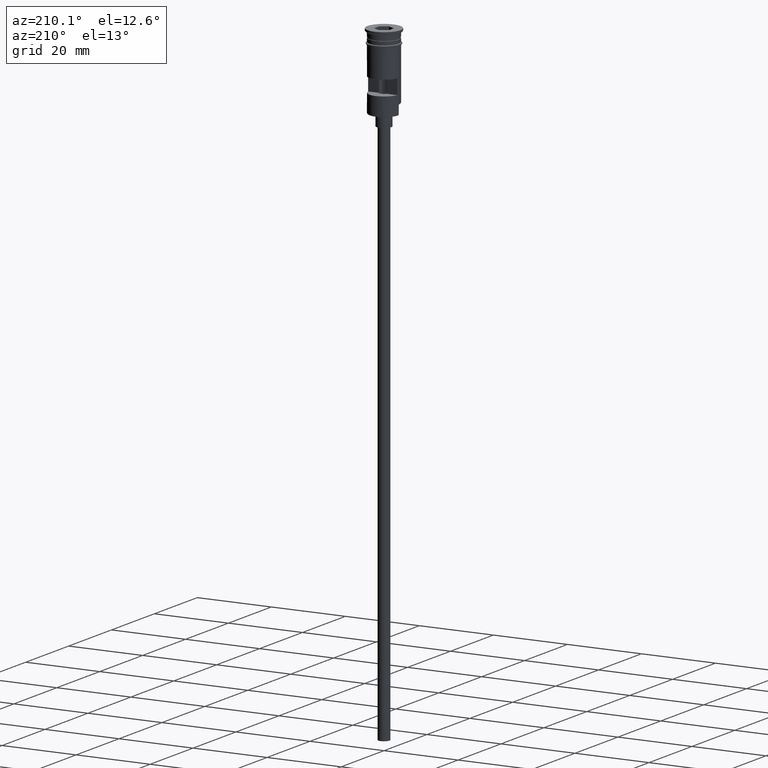
[diagram: clean part render]
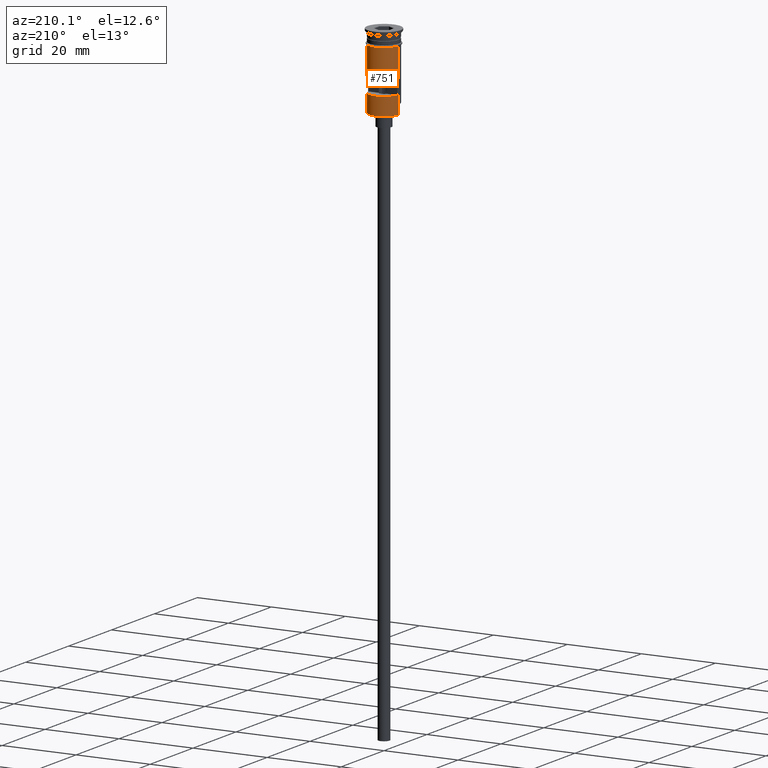
[diagram: same view with one face highlighted and labeled with its STEP entity id]
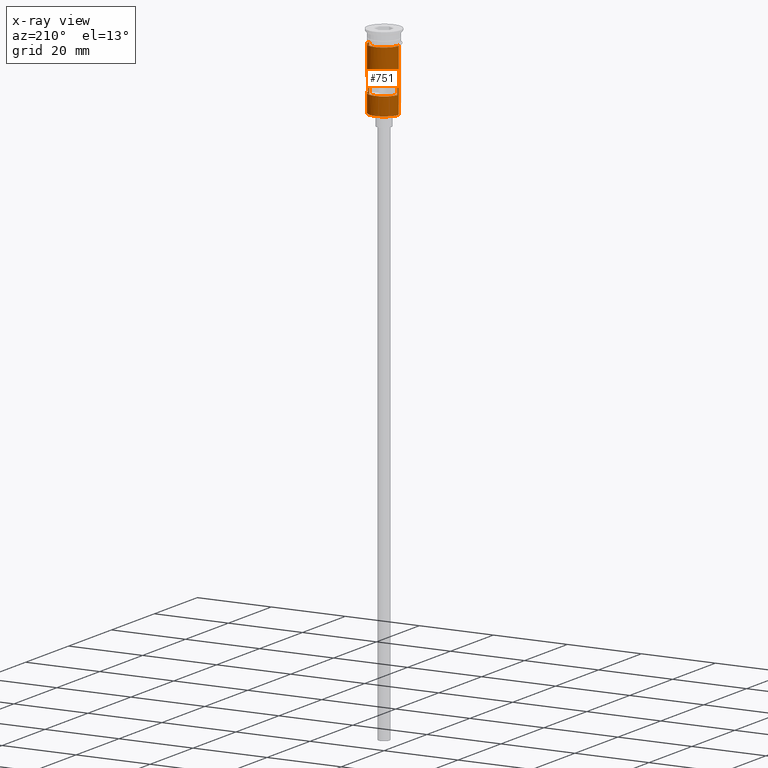
[diagram: x-ray of the same camera — body ghosted, the highlighted face saturated]
A machine part, auxiliary view. The second image highlights one B-rep face of the part: STEP entity #751.
The next image is the same camera in x-ray: the body ghosted, the highlighted face saturated — about 0% of this face is hidden behind the body in this view.
In plain terms, the highlighted cylindrical surface (edge-blend (fillet) strip) has radius 4 mm, axis along (-0, -0, 1).
Its self-contained STEP definition (entity closure, byte-faithful):
#59 = CARTESIAN_POINT ( 'NONE',  ( 3.954743986657038413, 0.5999999999999996447, -11.50000000000000000 ) ) ;
#67 = CARTESIAN_POINT ( 'NONE',  ( 4.000000000000000000, 4.898587196589412829E-16, -17.79999999999998295 ) ) ;
#69 = EDGE_CURVE ( 'NONE', #444, #1020, #927, .T. ) ;
#91 = CARTESIAN_POINT ( 'NONE',  ( -4.000000000000000000, 4.898587196589412829E-16, 0.000000000000000000 ) ) ;
#93 = CIRCLE ( 'NONE', #295, 4.000000000000000000 ) ;
#111 = VERTEX_POINT ( 'NONE', #59 ) ;
#133 = AXIS2_PLACEMENT_3D ( 'NONE', #1285, #807, #679 ) ;
#148 = EDGE_CURVE ( 'NONE', #111, #245, #899, .T. ) ;
#157 = VERTEX_POINT ( 'NONE', #1182 ) ;
#158 = CIRCLE ( 'NONE', #133, 4.000000000000000000 ) ;
#166 = EDGE_CURVE ( 'NONE', #157, #111, #158, .T. ) ;
#171 = DIRECTION ( 'NONE',  ( -1.000000000000000000, 0.000000000000000000, 0.000000000000000000 ) ) ;
#176 = CARTESIAN_POINT ( 'NONE',  ( -3.954743986657037524, 0.5999999999999996447, 0.000000000000000000 ) ) ;
#182 = LINE ( 'NONE', #670, #984 ) ;
#183 = DIRECTION ( 'NONE',  ( -0.000000000000000000, -0.000000000000000000, 1.000000000000000000 ) ) ;
#201 = EDGE_CURVE ( 'NONE', #889, #509, #1463, .T. ) ;
#245 = VERTEX_POINT ( 'NONE', #1435 ) ;
#258 = FACE_BOUND ( 'NONE', #503, .T. ) ;
#282 = DIRECTION ( 'NONE',  ( -0.000000000000000000, -0.000000000000000000, 1.000000000000000000 ) ) ;
#285 = CARTESIAN_POINT ( 'NONE',  ( 0.000000000000000000, 0.000000000000000000, -20.29999999999997584 ) ) ;
#295 = AXIS2_PLACEMENT_3D ( 'NONE', #305, #183, #1049 ) ;
#299 = AXIS2_PLACEMENT_3D ( 'NONE', #285, #1283, #171 ) ;
#305 = CARTESIAN_POINT ( 'NONE',  ( 0.000000000000000000, 0.000000000000000000, -3.799999999999998490 ) ) ;
#365 = CARTESIAN_POINT ( 'NONE',  ( 0.000000000000000000, 0.000000000000000000, -15.50000000000000000 ) ) ;
#371 = VECTOR ( 'NONE', #709, 1000.000000000000000 ) ;
#379 = CIRCLE ( 'NONE', #299, 4.000000000000000000 ) ;
#384 = EDGE_CURVE ( 'NONE', #444, #1048, #379, .T. ) ;
#388 = CARTESIAN_POINT ( 'NONE',  ( -3.999999999999997335, 0.000000000000000000, -17.79999999999998295 ) ) ;
#395 = CARTESIAN_POINT ( 'NONE',  ( 3.999999999999997335, 4.898587196589409870E-16, -20.29999999999997584 ) ) ;
#422 = VERTEX_POINT ( 'NONE', #896 ) ;
#438 = EDGE_CURVE ( 'NONE', #1020, #422, #182, .T. ) ;
#444 = VERTEX_POINT ( 'NONE', #395 ) ;
#503 = EDGE_LOOP ( 'NONE', ( #551, #1248, #915, #954 ) ) ;
#509 = VERTEX_POINT ( 'NONE', #828 ) ;
#527 = ORIENTED_EDGE ( 'NONE', *, *, #201, .T. ) ;
#528 = EDGE_CURVE ( 'NONE', #1048, #889, #1308, .T. ) ;
#532 = AXIS2_PLACEMENT_3D ( 'NONE', #1396, #282, #1149 ) ;
#543 = VECTOR ( 'NONE', #918, 1000.000000000000000 ) ;
#551 = ORIENTED_EDGE ( 'NONE', *, *, #148, .F. ) ;
#553 = CARTESIAN_POINT ( 'NONE',  ( -3.999999999999997335, 0.000000000000000000, -20.49999999999999645 ) ) ;
#617 = ORIENTED_EDGE ( 'NONE', *, *, #384, .T. ) ;
#665 = CARTESIAN_POINT ( 'NONE',  ( -3.999999999999997335, 0.000000000000000000, -20.29999999999997584 ) ) ;
#669 = ORIENTED_EDGE ( 'NONE', *, *, #69, .F. ) ;
#670 = CARTESIAN_POINT ( 'NONE',  ( 4.000000000000000000, 0.000000000000000000, 0.000000000000000000 ) ) ;
#679 = DIRECTION ( 'NONE',  ( 1.000000000000000000, 0.000000000000000000, 0.000000000000000000 ) ) ;
#709 = DIRECTION ( 'NONE',  ( -0.000000000000000000, -0.000000000000000000, 1.000000000000000000 ) ) ;
#751 = ADVANCED_FACE ( 'NONE', ( #258, #1403 ), #905, .T. ) ;
#762 = CARTESIAN_POINT ( 'NONE',  ( -3.954743986657037524, 0.5999999999999996447, -15.50000000000000000 ) ) ;
#798 = AXIS2_PLACEMENT_3D ( 'NONE', #365, #865, #1000 ) ;
#807 = DIRECTION ( 'NONE',  ( -0.000000000000000000, 0.000000000000000000, -1.000000000000000000 ) ) ;
#814 = LINE ( 'NONE', #176, #1039 ) ;
#824 = CIRCLE ( 'NONE', #798, 4.000000000000000000 ) ;
#828 = CARTESIAN_POINT ( 'NONE',  ( -4.000000000000000000, 4.898587196589412829E-16, -3.799999999999998490 ) ) ;
#843 = ORIENTED_EDGE ( 'NONE', *, *, #528, .T. ) ;
#865 = DIRECTION ( 'NONE',  ( 0.000000000000000000, 0.000000000000000000, 1.000000000000000000 ) ) ;
#889 = VERTEX_POINT ( 'NONE', #388 ) ;
#893 = VERTEX_POINT ( 'NONE', #762 ) ;
#896 = CARTESIAN_POINT ( 'NONE',  ( 4.000000000000000000, 0.000000000000000000, -3.799999999999998490 ) ) ;
#899 = LINE ( 'NONE', #1032, #1330 ) ;
#905 = CYLINDRICAL_SURFACE ( 'NONE', #532, 4.000000000000000000 ) ;
#915 = ORIENTED_EDGE ( 'NONE', *, *, #1040, .F. ) ;
#918 = DIRECTION ( 'NONE',  ( -0.000000000000000000, -0.000000000000000000, 1.000000000000000000 ) ) ;
#919 = DIRECTION ( 'NONE',  ( -0.000000000000000000, -0.000000000000000000, 1.000000000000000000 ) ) ;
#927 = LINE ( 'NONE', #1409, #543 ) ;
#954 = ORIENTED_EDGE ( 'NONE', *, *, #963, .F. ) ;
#963 = EDGE_CURVE ( 'NONE', #245, #893, #824, .T. ) ;
#984 = VECTOR ( 'NONE', #1516, 1000.000000000000000 ) ;
#1000 = DIRECTION ( 'NONE',  ( -1.000000000000000000, 0.000000000000000000, 0.000000000000000000 ) ) ;
#1020 = VERTEX_POINT ( 'NONE', #67 ) ;
#1024 = DIRECTION ( 'NONE',  ( 0.000000000000000000, 0.000000000000000000, -1.000000000000000000 ) ) ;
#1032 = CARTESIAN_POINT ( 'NONE',  ( 3.954743986657037524, 0.5999999999999996447, 0.000000000000000000 ) ) ;
#1039 = VECTOR ( 'NONE', #919, 1000.000000000000000 ) ;
#1040 = EDGE_CURVE ( 'NONE', #893, #157, #814, .T. ) ;
#1048 = VERTEX_POINT ( 'NONE', #665 ) ;
#1049 = DIRECTION ( 'NONE',  ( 1.000000000000000000, 0.000000000000000000, 0.000000000000000000 ) ) ;
#1063 = VECTOR ( 'NONE', #1559, 1000.000000000000000 ) ;
#1149 = DIRECTION ( 'NONE',  ( 1.000000000000000000, 0.000000000000000000, 0.000000000000000000 ) ) ;
#1182 = CARTESIAN_POINT ( 'NONE',  ( -3.954743986657037524, 0.5999999999999996447, -11.50000000000000000 ) ) ;
#1243 = EDGE_LOOP ( 'NONE', ( #843, #527, #1315, #1363, #669, #617 ) ) ;
#1248 = ORIENTED_EDGE ( 'NONE', *, *, #166, .F. ) ;
#1283 = DIRECTION ( 'NONE',  ( 0.000000000000000000, 0.000000000000000000, 1.000000000000000000 ) ) ;
#1285 = CARTESIAN_POINT ( 'NONE',  ( 0.000000000000000000, 0.000000000000000000, -11.50000000000000000 ) ) ;
#1308 = LINE ( 'NONE', #553, #1063 ) ;
#1315 = ORIENTED_EDGE ( 'NONE', *, *, #1484, .F. ) ;
#1330 = VECTOR ( 'NONE', #1024, 1000.000000000000000 ) ;
#1363 = ORIENTED_EDGE ( 'NONE', *, *, #438, .F. ) ;
#1396 = CARTESIAN_POINT ( 'NONE',  ( 0.000000000000000000, 0.000000000000000000, 0.000000000000000000 ) ) ;
#1403 = FACE_OUTER_BOUND ( 'NONE', #1243, .T. ) ;
#1409 = CARTESIAN_POINT ( 'NONE',  ( 3.999999999999997335, 4.898587196589409870E-16, -20.49999999999999645 ) ) ;
#1435 = CARTESIAN_POINT ( 'NONE',  ( 3.954743986657038413, 0.5999999999999996447, -15.50000000000000000 ) ) ;
#1463 = LINE ( 'NONE', #91, #371 ) ;
#1484 = EDGE_CURVE ( 'NONE', #422, #509, #93, .T. ) ;
#1516 = DIRECTION ( 'NONE',  ( -0.000000000000000000, -0.000000000000000000, 1.000000000000000000 ) ) ;
#1559 = DIRECTION ( 'NONE',  ( -0.000000000000000000, -0.000000000000000000, 1.000000000000000000 ) ) ;